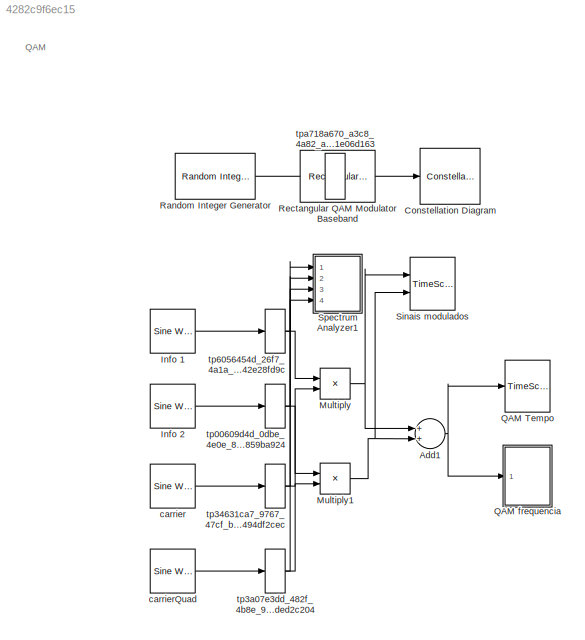
MODEL slx_4282c9f6ec15
KIND model
CONFIG AbsTol = auto
CONFIG FixedStep = 10e-6
CONFIG MaxStep = auto
CONFIG MinStep = auto
CONFIG RelTol = 10e-3
CONFIG SampleTimeConstraint = Unconstrained
CONFIG Solver = ode45
CONFIG SolverMode = SingleTasking
CONFIG SolverName = ode45
CONFIG StartTime = 0.0
CONFIG StopTime = 0.1
BLOCK [Sum] Add1
  InputSameDT = off
  OutDataTypeStr = Inherit: Inherit via internal rule
  Ports = [2, 1]
  SaturateOnIntegerOverflow = off
BLOCK [ConstellationDiagram] Constellation Diagram
  Ports = [1]
  ScopeSpecificationString = comm.scopes.ConstellationDiagramBlockCfg('CurrentConfiguration', extmgr.ConfigurationSet(extmgr.Configuration('Core','General UI',true),extmgr.Configuration('Core','Source UI',true),extmgr.Configuration('Sources','WiredSimulink',true),extmgr.Configuration('Visuals','Constellation',true,'AxesProperties',struct('Color',[0 0 0],'XColor',[0.686274509803922 0.686274509803922 0.686274509803922],'YColor'...<+677ch>
BLOCK [Reference] Info 1  REF=dspsrcs4/Sine Wave
  Amplitude = 0.3
  CompMethod = Trigonometric fcn
  Frequency = 2e3
  LastOutDataTypeStr = double
  OutComplex = Real
  OutDataTypeStr = double
  Phase = 0
  Ports = [0, 1]
  ResetState = Restart at time zero
  SampleMode = Discrete
  SampleTime = 1/1e6
  SamplesPerFrame = 100
  SourceBlock = dspsrcs4/Sine Wave
  SourceType = Sine Wave
  TableSize = Speed
  additionalParams = off
  allowOverrides = on
  dataType = double
  fracBitsMode = Best precision
  numFracBits = 15
  udDataType = sfix(16)
  wordLen = 16
BLOCK [Reference] Info 2  REF=dspsrcs4/Sine Wave
  Amplitude = 0.5
  CompMethod = Trigonometric fcn
  Frequency = 7e3
  LastOutDataTypeStr = double
  OutComplex = Real
  OutDataTypeStr = double
  Phase = 0
  Ports = [0, 1]
  ResetState = Restart at time zero
  SampleMode = Discrete
  SampleTime = 1/1e6
  SamplesPerFrame = 100
  SourceBlock = dspsrcs4/Sine Wave
  SourceType = Sine Wave
  TableSize = Speed
  additionalParams = off
  allowOverrides = on
  dataType = double
  fracBitsMode = Best precision
  numFracBits = 15
  udDataType = sfix(16)
  wordLen = 16
BLOCK [Product] Multiply
  InputSameDT = off
  OutDataTypeStr = Inherit: Inherit via internal rule
  Ports = [2, 1]
  RndMeth = Floor
  SaturateOnIntegerOverflow = off
BLOCK [Product] Multiply1
  InputSameDT = off
  OutDataTypeStr = Inherit: Inherit via internal rule
  Ports = [2, 1]
  RndMeth = Floor
  SaturateOnIntegerOverflow = off
BLOCK [TimeScope] QAM Tempo
  DefaultConfigurationName = spbscopes.TimeScopeBlockCfg
  Floating = off
  NumInputPorts = 1
  Ports = [1]
  ScopeSpecificationString = spbscopes.TimeScopeBlockCfg('CurrentConfiguration', extmgr.ConfigurationSet(extmgr.Configuration('Core','General UI',true),extmgr.Configuration('Core','Source UI',true),extmgr.Configuration('Sources','WiredSimulink',true,'DataLoggingVariableName','ScopeData1'),extmgr.Configuration('Visuals','Time Domain',true,'DisplayPropertyDefaults',struct('MinYLimReal','-1.17673','MaxYLimReal','1.17607','YLabel...<+1433ch>
  UserDataPersistent = on
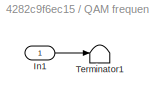
BLOCK [SubSystem] QAM frequencia
  Description = Replaced Block
  Ports = [1]
  RequestExecContextInheritance = off
BLOCK [Inport] QAM frequencia/In1
  IconDisplay = Port number
BLOCK [Terminator] QAM frequencia/Terminator1
BLOCK [Reference] Random Integer Generator  REF=commrandsrc2/Random Integer
Generator
  Ports = [0, 1]
  SourceBlock = commrandsrc2/Random Integer\nGenerator
  Ts = 1
  frameBased = on
  mul = 4
  outDataType = double
  sampPerFrame = 10000
  seed = 0
BLOCK [Reference] Rectangular QAM Modulator Baseband  REF=commdigbbndam3/Rectangular QAM
Modulator
Baseband
  AvgPow = 1
  Enc = Gray
  InType = Integer
  M = 4
  Mapping = [0:15]
  MinDist = 2
  PeakPow = 1
  Ph = 0
  Ports = [1, 1]
  PowType = Min. distance between symbols
  SourceBlock = commdigbbndam3/Rectangular QAM\nModulator\nBaseband
  SourceType = Rectangular QAM Modulator Baseband
  outDtype = double
  outFracLen = 15
  outFracLenMode = Best precision
  outUDDataType = sfix(16)
  outWordLen = 16
BLOCK [TimeScope] Sinais modulados
  DefaultConfigurationName = spbscopes.TimeScopeBlockCfg
  Floating = off
  NumInputPorts = 2
  Ports = [2]
  ScopeSpecificationString = spbscopes.TimeScopeBlockCfg('CurrentConfiguration', extmgr.ConfigurationSet(extmgr.Configuration('Core','General UI',true),extmgr.Configuration('Core','Source UI',true),extmgr.Configuration('Sources','WiredSimulink',true),extmgr.Configuration('Visuals','Time Domain',true,'DisplayPropertyDefaults',struct('MinYLimReal','-1.15029','MaxYLimReal','1.02479','YLabelReal','Amplitude','MinYLimMag','0.00000...<+1411ch>
  UserDataPersistent = on
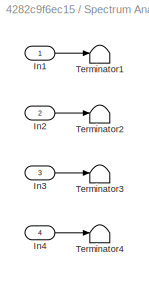
BLOCK [SubSystem] Spectrum Analyzer1
  Description = Replaced Block
  Ports = [4]
  RequestExecContextInheritance = off
BLOCK [Inport] Spectrum Analyzer1/In1
  IconDisplay = Port number
BLOCK [Inport] Spectrum Analyzer1/In2
  IconDisplay = Port number
  Port = 2
BLOCK [Inport] Spectrum Analyzer1/In3
  IconDisplay = Port number
  Port = 3
BLOCK [Inport] Spectrum Analyzer1/In4
  IconDisplay = Port number
  Port = 4
BLOCK [Terminator] Spectrum Analyzer1/Terminator1
BLOCK [Terminator] Spectrum Analyzer1/Terminator2
BLOCK [Terminator] Spectrum Analyzer1/Terminator3
BLOCK [Terminator] Spectrum Analyzer1/Terminator4
BLOCK [Reference] carrier  REF=dspsrcs4/Sine Wave
  Amplitude = 2
  CompMethod = Trigonometric fcn
  Frequency = 100e3
  LastOutDataTypeStr = double
  OutComplex = Real
  OutDataTypeStr = double
  Phase = 0
  Ports = [0, 1]
  ResetState = Restart at time zero
  SampleMode = Discrete
  SampleTime = 1/1e6
  SamplesPerFrame = 100
  SourceBlock = dspsrcs4/Sine Wave
  SourceType = Sine Wave
  TableSize = Speed
  additionalParams = off
  allowOverrides = on
  dataType = double
  fracBitsMode = Best precision
  numFracBits = 15
  udDataType = sfix(16)
  wordLen = 16
BLOCK [Reference] carrierQuad  REF=dspsrcs4/Sine Wave
  Amplitude = 2
  CompMethod = Trigonometric fcn
  Frequency = 100e3
  LastOutDataTypeStr = double
  OutComplex = Real
  OutDataTypeStr = double
  Phase = 90*pi/180
  Ports = [0, 1]
  ResetState = Restart at time zero
  SampleMode = Discrete
  SampleTime = 1/1e6
  SamplesPerFrame = 100
  SourceBlock = dspsrcs4/Sine Wave
  SourceType = Sine Wave
  TableSize = Speed
  additionalParams = off
  allowOverrides = on
  dataType = double
  fracBitsMode = Best precision
  numFracBits = 15
  udDataType = sfix(16)
  wordLen = 16
BLOCK [FrameConversion] tp00609d4d_0dbe_4e0e_8593_8c5b859ba924
  OutFrame = Sample-based
  Ports = [1, 1]
BLOCK [FrameConversion] tp34631ca7_9767_47cf_b617_fd4494df2cec
  OutFrame = Sample-based
  Ports = [1, 1]
BLOCK [FrameConversion] tp3a07e3dd_482f_4b8e_975c_ed5aded2c204
  OutFrame = Sample-based
  Ports = [1, 1]
BLOCK [FrameConversion] tp6056454d_26f7_4a1a_89de_27f42e28fd9c
  OutFrame = Sample-based
  Ports = [1, 1]
BLOCK [FrameConversion] tpa718a670_a3c8_4a82_a5e9_227c1e06d163
  OutFrame = Sample-based
  Ports = [1, 1]
ANNOTATION (root): QAM
NET Add1:1 -> QAM Tempo:1, QAM frequencia:1
LINE Info 1:1 -> tp6056454d_26f7_4a1a_89de_27f42e28fd9c:1
LINE Info 2:1 -> tp00609d4d_0dbe_4e0e_8593_8c5b859ba924:1
NET Multiply1:1 -> Add1:2, Sinais modulados:2
NET Multiply:1 -> Add1:1, Sinais modulados:1
LINE QAM frequencia/In1:1 -> QAM frequencia/Terminator1:1
LINE Random Integer Generator:1 -> tpa718a670_a3c8_4a82_a5e9_227c1e06d163:1
LINE Rectangular QAM Modulator Baseband:1 -> Constellation Diagram:1
LINE Spectrum Analyzer1/In1:1 -> Spectrum Analyzer1/Terminator1:1
LINE Spectrum Analyzer1/In2:1 -> Spectrum Analyzer1/Terminator2:1
LINE Spectrum Analyzer1/In3:1 -> Spectrum Analyzer1/Terminator3:1
LINE Spectrum Analyzer1/In4:1 -> Spectrum Analyzer1/Terminator4:1
LINE carrier:1 -> tp34631ca7_9767_47cf_b617_fd4494df2cec:1
LINE carrierQuad:1 -> tp3a07e3dd_482f_4b8e_975c_ed5aded2c204:1
NET tp00609d4d_0dbe_4e0e_8593_8c5b859ba924:1 -> Multiply1:1, Spectrum Analyzer1:2
NET tp34631ca7_9767_47cf_b617_fd4494df2cec:1 -> Multiply:2, Spectrum Analyzer1:3
NET tp3a07e3dd_482f_4b8e_975c_ed5aded2c204:1 -> Multiply1:2, Spectrum Analyzer1:4
NET tp6056454d_26f7_4a1a_89de_27f42e28fd9c:1 -> Multiply:1, Spectrum Analyzer1:1
LINE tpa718a670_a3c8_4a82_a5e9_227c1e06d163:1 -> Rectangular QAM Modulator Baseband:1
note: NET lines group one-source signal fan-out (src -> all destinations, sorted); 1:1 wires keep LINE
